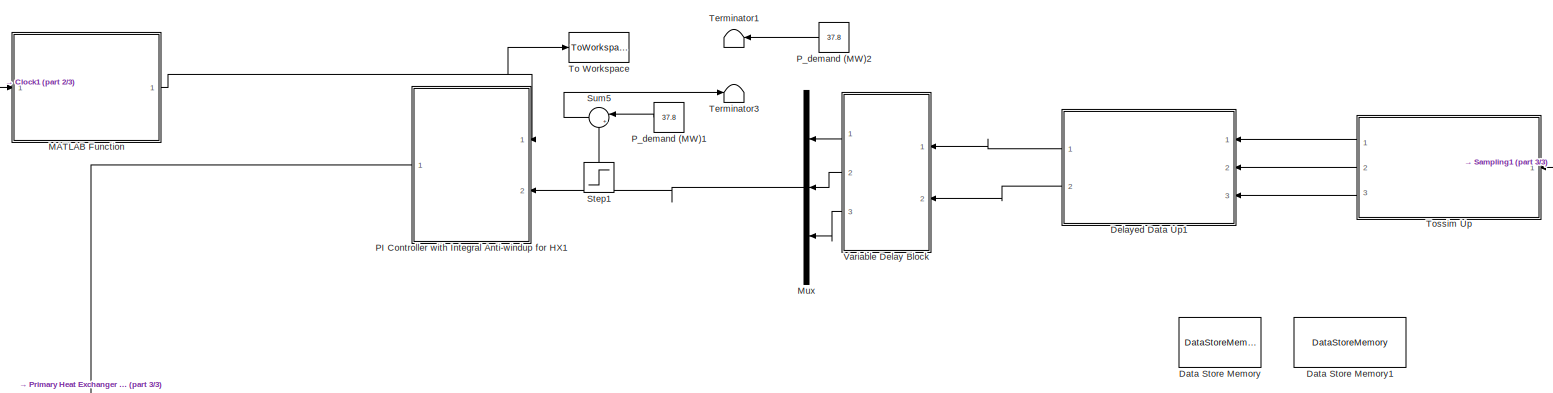
[diagram: root canvas - part 1/3, full width, top band]
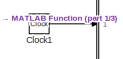
[diagram: root canvas - part 2/3, top left region]
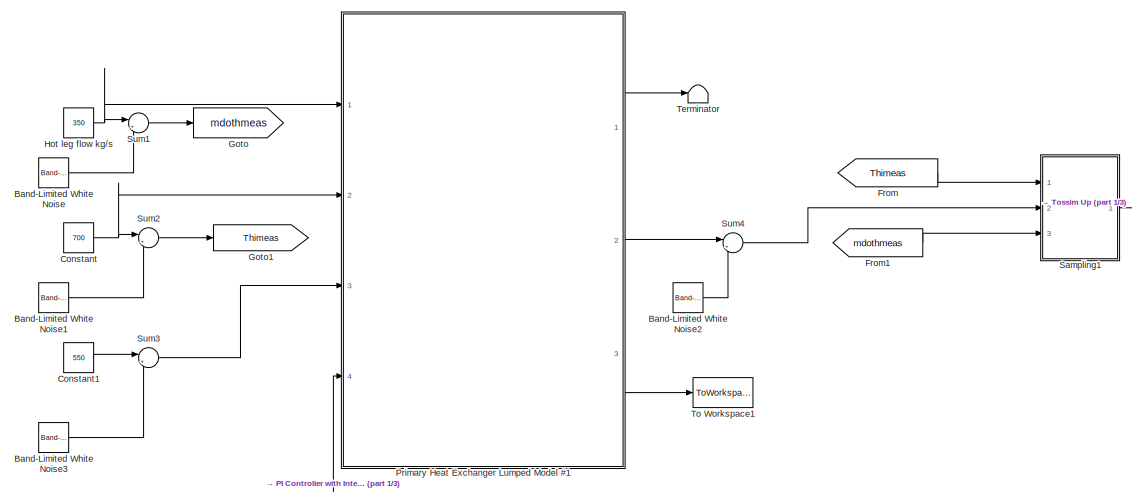
[diagram: root canvas - part 3/3, bottom center region]
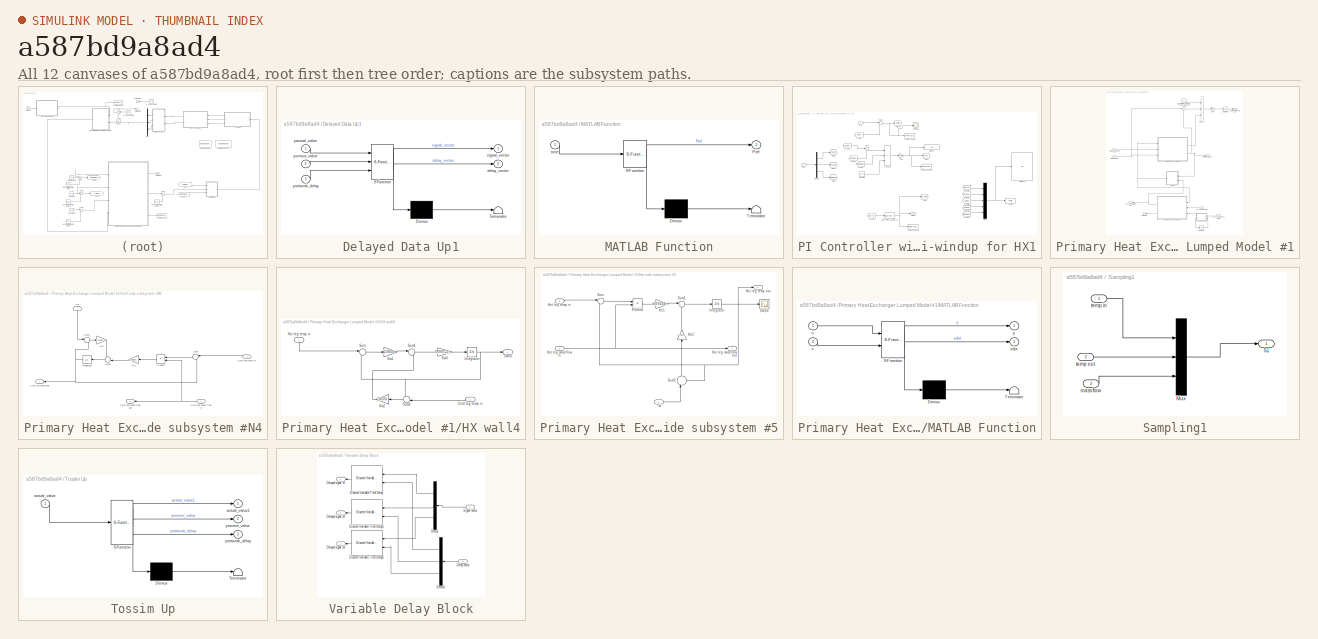
[diagram: thumbnail index - all 12 canvases of the model, root first then tree order]
MODEL slx_a587bd9a8ad4
KIND model
BLOCK [Reference] Band-Limited White Noise  REF=simulink/Sources/Band-Limited
White Noise
  Cov = Sv_mh*Ts
  Ports = [0, 1]
  SourceBlock = simulink/Sources/Band-Limited\nWhite Noise
  SourceType = Band-Limited White Noise.
  Ts = Ts
  VectorParams1D = on
  seed = [34567]
BLOCK [Reference] Band-Limited White Noise1  REF=simulink/Sources/Band-Limited
White Noise
  Cov = Sv_thi*Ts
  Ports = [0, 1]
  SourceBlock = simulink/Sources/Band-Limited\nWhite Noise
  SourceType = Band-Limited White Noise.
  Ts = Ts
  VectorParams1D = on
  seed = [11111]
BLOCK [Reference] Band-Limited White Noise2  REF=simulink/Sources/Band-Limited
White Noise
  Cov = Sv_tho*Ts
  Ports = [0, 1]
  SourceBlock = simulink/Sources/Band-Limited\nWhite Noise
  SourceType = Band-Limited White Noise.
  Ts = Ts
  VectorParams1D = on
  seed = [45678]
BLOCK [Reference] Band-Limited White Noise3  REF=simulink/Sources/Band-Limited
White Noise
  Cov = 0
  Ports = [0, 1]
  SourceBlock = simulink/Sources/Band-Limited\nWhite Noise
  SourceType = Band-Limited White Noise.
  Ts = Ts
  VectorParams1D = on
  seed = [23341]
BLOCK [Clock] Clock1
BLOCK [Constant] Constant
  Value = 700
BLOCK [Constant] Constant1
  Value = 550
BLOCK [DataStoreMemory] Data Store Memory
  DataStoreName = counter_global
  OutDataTypeStr = int32
  ReadBeforeWriteMsg = warning
  SignalType = real
  WriteAfterReadMsg = warning
  WriteAfterWriteMsg = warning
BLOCK [DataStoreMemory] Data Store Memory1
  DataStoreName = ydelay_global
  InitialValue = ones(10,1)
  OutDataTypeStr = int32
  ReadBeforeWriteMsg = warning
  SignalType = real
  WriteAfterReadMsg = warning
  WriteAfterWriteMsg = warning
BLOCK [SubSystem] Delayed Data Up1
  ErrorFcn = Stateflow.Translate.translate
  PermitHierarchicalResolution = ExplicitOnly
  Ports = [3, 2]
  RequestExecContextInheritance = off
  SFBlockType = MATLAB Function
  SystemSampleTime = 0.1
  TreatAsAtomicUnit = on
BLOCK [Demux] Delayed Data Up1/ Demux 
  Outputs = 1
  Ports = [1, 1]
BLOCK [S-Function] Delayed Data Up1/ SFunction 
  EnableBusSupport = on
  FunctionName = sf_sfun
  Parameters = structure
  PortCounts = [3 3]
  Ports = [3, 3]
  Tag = Stateflow S-Function HeatExchanger_whole_sanity 3
BLOCK [Terminator] Delayed Data Up1/ Terminator 
BLOCK [Outport] Delayed Data Up1/delay_vector
  IconDisplay = Port number
  Port = 2
BLOCK [Outport] Delayed Data Up1/signal_vector
  IconDisplay = Port number
BLOCK [Inport] Delayed Data Up1/yactual_value
  IconDisplay = Port number
BLOCK [Inport] Delayed Data Up1/ynetwork_delay
  IconDisplay = Port number
  Port = 3
BLOCK [Inport] Delayed Data Up1/ysensor_value
  IconDisplay = Port number
  Port = 2
BLOCK [From] From
  GotoTag = Thimeas
  TagVisibility = global
BLOCK [From] From1
  GotoTag = mdothmeas
  TagVisibility = global
BLOCK [Goto] Goto
  GotoTag = mdothmeas
  TagVisibility = global
BLOCK [Goto] Goto1
  GotoTag = Thimeas
  TagVisibility = global
BLOCK [Constant] Hot leg flow kg//s
  Value = 350
BLOCK [SubSystem] MATLAB Function
  ErrorFcn = Stateflow.Translate.translate
  PermitHierarchicalResolution = ExplicitOnly
  Ports = [1, 1]
  RequestExecContextInheritance = off
  SFBlockType = MATLAB Function
  TreatAsAtomicUnit = on
BLOCK [Demux] MATLAB Function/ Demux 
  Outputs = 1
  Ports = [1, 1]
BLOCK [S-Function] MATLAB Function/ SFunction 
  EnableBusSupport = on
  FunctionName = sf_sfun
  PortCounts = [1 2]
  Ports = [1, 2]
  Tag = Stateflow S-Function HeatExchanger_whole_sanity 4
BLOCK [Terminator] MATLAB Function/ Terminator 
BLOCK [Outport] MATLAB Function/Pref
  IconDisplay = Port number
BLOCK [Inport] MATLAB Function/time
  IconDisplay = Port number
BLOCK [Mux] Mux
  DisplayOption = bar
  Inputs = 3
  Ports = [3, 1]
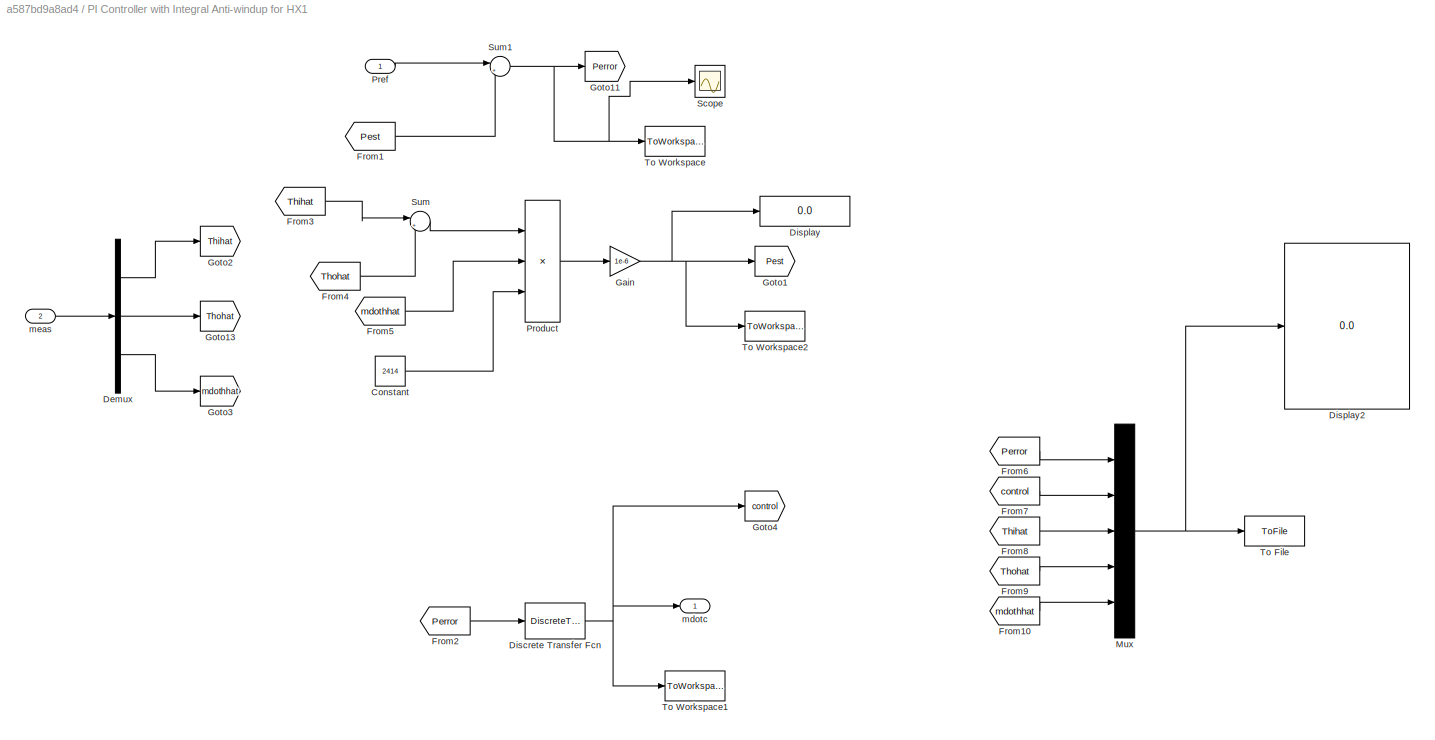
BLOCK [SubSystem] PI Controller with Integral Anti-windup for HX1
  Ports = [2, 1]
  RequestExecContextInheritance = off
BLOCK [Constant] PI Controller with Integral Anti-windup for HX1/Constant
  SampleTime = Ts
  Value = 2414
BLOCK [Demux] PI Controller with Integral Anti-windup for HX1/Demux
  DisplayOption = bar
  Outputs = 3
  Ports = [1, 3]
BLOCK [DiscreteTransferFcn] PI Controller with Integral Anti-windup for HX1/Discrete Transfer Fcn
  Denominator = [1 -1]
  InitialStates = 20
  InputPortMap = u0
  Numerator = [kp -(kp-ki*Ts)]
  Ports = [1, 1]
  SampleTime = Ts
BLOCK [Display] PI Controller with Integral Anti-windup for HX1/Display
  Decimation = 1
  Ports = [1]
BLOCK [Display] PI Controller with Integral Anti-windup for HX1/Display2
  Decimation = 1
  Ports = [1]
BLOCK [From] PI Controller with Integral Anti-windup for HX1/From1
  GotoTag = Pest
  TagVisibility = global
BLOCK [From] PI Controller with Integral Anti-windup for HX1/From10
  GotoTag = mdothhat
  TagVisibility = global
BLOCK [From] PI Controller with Integral Anti-windup for HX1/From2
  GotoTag = Perror
  TagVisibility = global
BLOCK [From] PI Controller with Integral Anti-windup for HX1/From3
  GotoTag = Thihat
  TagVisibility = global
BLOCK [From] PI Controller with Integral Anti-windup for HX1/From4
  GotoTag = Thohat
  TagVisibility = global
BLOCK [From] PI Controller with Integral Anti-windup for HX1/From5
  GotoTag = mdothhat
  TagVisibility = global
BLOCK [From] PI Controller with Integral Anti-windup for HX1/From6
  GotoTag = Perror
  TagVisibility = global
BLOCK [From] PI Controller with Integral Anti-windup for HX1/From7
  GotoTag = control
  TagVisibility = global
BLOCK [From] PI Controller with Integral Anti-windup for HX1/From8
  GotoTag = Thihat
  TagVisibility = global
BLOCK [From] PI Controller with Integral Anti-windup for HX1/From9
  GotoTag = Thohat
  TagVisibility = global
BLOCK [Gain] PI Controller with Integral Anti-windup for HX1/Gain
  Gain = 1e-6
  OutDataTypeStr = Inherit: Inherit via internal rule
  ParamDataTypeStr = Inherit: Inherit via internal rule
  SaturateOnIntegerOverflow = off
BLOCK [Goto] PI Controller with Integral Anti-windup for HX1/Goto1
  GotoTag = Pest
  TagVisibility = global
BLOCK [Goto] PI Controller with Integral Anti-windup for HX1/Goto11
  GotoTag = Perror
  TagVisibility = global
BLOCK [Goto] PI Controller with Integral Anti-windup for HX1/Goto13
  GotoTag = Thohat
  TagVisibility = global
BLOCK [Goto] PI Controller with Integral Anti-windup for HX1/Goto2
  GotoTag = Thihat
  TagVisibility = global
BLOCK [Goto] PI Controller with Integral Anti-windup for HX1/Goto3
  GotoTag = mdothhat
  TagVisibility = global
BLOCK [Goto] PI Controller with Integral Anti-windup for HX1/Goto4
  GotoTag = control
  TagVisibility = global
BLOCK [Mux] PI Controller with Integral Anti-windup for HX1/Mux
  DisplayOption = bar
  Inputs = 5
  Ports = [5, 1]
BLOCK [Inport] PI Controller with Integral Anti-windup for HX1/Pref
  IconDisplay = Port number
BLOCK [Product] PI Controller with Integral Anti-windup for HX1/Product
  InputSameDT = off
  Inputs = 3
  OutDataTypeStr = Inherit: Inherit via internal rule
  Ports = [3, 1]
  RndMeth = Floor
  SaturateOnIntegerOverflow = off
BLOCK [Scope] PI Controller with Integral Anti-windup for HX1/Scope
  DataFormat = StructureWithTime
  Floating = off
  LimitDataPoints = off
  NumInputPorts = 1
  Ports = [1]
  SampleTime = 0
  SaveName = ScopeData1
  ShowLegends = off
BLOCK [Sum] PI Controller with Integral Anti-windup for HX1/Sum
  IconShape = round
  InputSameDT = off
  Inputs = |+-
  OutDataTypeStr = Inherit: Inherit via internal rule
  Ports = [2, 1]
  SaturateOnIntegerOverflow = off
BLOCK [Sum] PI Controller with Integral Anti-windup for HX1/Sum1
  IconShape = round
  InputSameDT = off
  Inputs = |+-
  OutDataTypeStr = Inherit: Inherit via internal rule
  Ports = [2, 1]
  SaturateOnIntegerOverflow = off
BLOCK [ToFile] PI Controller with Integral Anti-windup for HX1/To File
  Filename = xorigsanity.mat
  MatrixName = xorigsanity
  Ports = [1]
BLOCK [ToWorkspace] PI Controller with Integral Anti-windup for HX1/To Workspace
  MaxDataPoints = inf
  Ports = [1]
  SampleTime = -1
  VariableName = Perror
BLOCK [ToWorkspace] PI Controller with Integral Anti-windup for HX1/To Workspace1
  MaxDataPoints = inf
  Ports = [1]
  SampleTime = -1
  VariableName = control
BLOCK [ToWorkspace] PI Controller with Integral Anti-windup for HX1/To Workspace2
  MaxDataPoints = inf
  Ports = [1]
  SampleTime = -1
  VariableName = Pest
BLOCK [Outport] PI Controller with Integral Anti-windup for HX1/mdotc
  IconDisplay = Port number
BLOCK [Inport] PI Controller with Integral Anti-windup for HX1/meas
  IconDisplay = Port number
  Port = 2
BLOCK [Constant] P_demand (MW)1
  Value = 37.8
BLOCK [Constant] P_demand (MW)2
  Value = 37.8
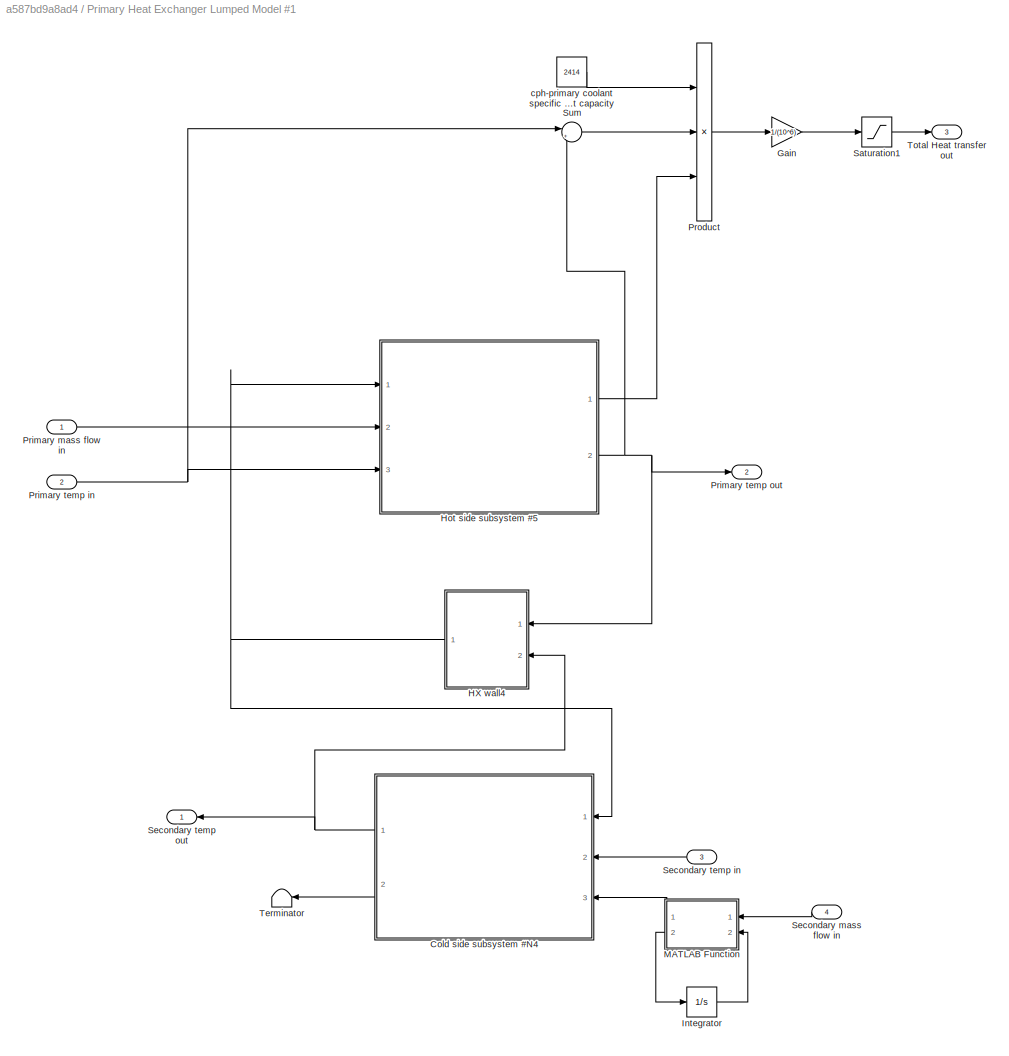
BLOCK [SubSystem] Primary Heat Exchanger Lumped Model #1
  Ports = [4, 3]
  RequestExecContextInheritance = off
BLOCK [SubSystem] Primary Heat Exchanger Lumped Model #1/Cold side subsystem #N4
  Ports = [3, 2]
  RequestExecContextInheritance = off
BLOCK [Inport] Primary Heat Exchanger Lumped Model #1/Cold side subsystem #N4/Cold leg mass flow in
  IconDisplay = Port number
  Port = 3
BLOCK [Outport] Primary Heat Exchanger Lumped Model #1/Cold side subsystem #N4/Cold leg mass flow out
  IconDisplay = Port number
  Port = 2
BLOCK [Inport] Primary Heat Exchanger Lumped Model #1/Cold side subsystem #N4/Cold leg temp in
  IconDisplay = Port number
  Port = 2
BLOCK [Outport] Primary Heat Exchanger Lumped Model #1/Cold side subsystem #N4/Cold leg temp out
  IconDisplay = Port number
BLOCK [Integrator] Primary Heat Exchanger Lumped Model #1/Cold side subsystem #N4/Integrator
  InitialCondition = 638.4
  Ports = [1, 1]
BLOCK [Gain] Primary Heat Exchanger Lumped Model #1/Cold side subsystem #N4/Kc1
  Gain = 0.000327262183480198
  OutDataTypeStr = Inherit: Inherit via internal rule
  ParamDataTypeStr = Inherit: Inherit via internal rule
  SaturateOnIntegerOverflow = off
BLOCK [Gain] Primary Heat Exchanger Lumped Model #1/Cold side subsystem #N4/Kc2
  Gain = 1.23242359038211
  OutDataTypeStr = Inherit: Inherit via internal rule
  ParamDataTypeStr = Inherit: Inherit via internal rule
  SaturateOnIntegerOverflow = off
BLOCK [Product] Primary Heat Exchanger Lumped Model #1/Cold side subsystem #N4/Product
  InputSameDT = off
  OutDataTypeStr = Inherit: Inherit via internal rule
  Ports = [2, 1]
  RndMeth = Floor
  SaturateOnIntegerOverflow = off
BLOCK [Sum] Primary Heat Exchanger Lumped Model #1/Cold side subsystem #N4/Sum
  IconShape = round
  InputSameDT = off
  Inputs = |+-
  OutDataTypeStr = Inherit: Inherit via internal rule
  Ports = [2, 1]
  SaturateOnIntegerOverflow = off
BLOCK [Sum] Primary Heat Exchanger Lumped Model #1/Cold side subsystem #N4/Sum1
  IconShape = round
  InputSameDT = off
  Inputs = ++|
  OutDataTypeStr = Inherit: Inherit via internal rule
  Ports = [2, 1]
  SaturateOnIntegerOverflow = off
BLOCK [Sum] Primary Heat Exchanger Lumped Model #1/Cold side subsystem #N4/Sum2
  IconShape = round
  InputSameDT = off
  Inputs = |+-
  OutDataTypeStr = Inherit: Inherit via internal rule
  Ports = [2, 1]
  SaturateOnIntegerOverflow = off
BLOCK [Inport] Primary Heat Exchanger Lumped Model #1/Cold side subsystem #N4/Tw
  IconDisplay = Port number
BLOCK [Gain] Primary Heat Exchanger Lumped Model #1/Gain
  Gain = 1/(10^6)
  OutDataTypeStr = Inherit: Inherit via internal rule
  ParamDataTypeStr = Inherit: Inherit via internal rule
  SaturateOnIntegerOverflow = off
BLOCK [SubSystem] Primary Heat Exchanger Lumped Model #1/HX wall4
  Ports = [2, 1]
  RequestExecContextInheritance = off
BLOCK [Inport] Primary Heat Exchanger Lumped Model #1/HX wall4/Cold leg temp in
  IconDisplay = Port number
  Port = 2
BLOCK [Inport] Primary Heat Exchanger Lumped Model #1/HX wall4/Hot leg temp in
  IconDisplay = Port number
BLOCK [Integrator] Primary Heat Exchanger Lumped Model #1/HX wall4/Integrator
  InitialCondition = 644.3
  Ports = [1, 1]
BLOCK [Gain] Primary Heat Exchanger Lumped Model #1/HX wall4/Kw1
  Gain = 23800
  OutDataTypeStr = Inherit: Inherit via internal rule
  ParamDataTypeStr = Inherit: Inherit via internal rule
  SaturateOnIntegerOverflow = off
BLOCK [Gain] Primary Heat Exchanger Lumped Model #1/HX wall4/Kw2
  Gain = 24500
  OutDataTypeStr = Inherit: Inherit via internal rule
  ParamDataTypeStr = Inherit: Inherit via internal rule
  SaturateOnIntegerOverflow = off
BLOCK [Gain] Primary Heat Exchanger Lumped Model #1/HX wall4/Kw3
  Gain = 0.000122049789881805
  OutDataTypeStr = Inherit: Inherit via internal rule
  ParamDataTypeStr = Inherit: Inherit via internal rule
  SaturateOnIntegerOverflow = off
BLOCK [Sum] Primary Heat Exchanger Lumped Model #1/HX wall4/Sum
  IconShape = round
  InputSameDT = off
  Inputs = |+-
  OutDataTypeStr = Inherit: Inherit via internal rule
  Ports = [2, 1]
  SaturateOnIntegerOverflow = off
BLOCK [Sum] Primary Heat Exchanger Lumped Model #1/HX wall4/Sum1
  IconShape = round
  InputSameDT = off
  Inputs = |+-
  OutDataTypeStr = Inherit: Inherit via internal rule
  Ports = [2, 1]
  SaturateOnIntegerOverflow = off
BLOCK [Sum] Primary Heat Exchanger Lumped Model #1/HX wall4/Sum2
  IconShape = round
  InputSameDT = off
  Inputs = +-|
  OutDataTypeStr = Inherit: Inherit via internal rule
  Ports = [2, 1]
  SaturateOnIntegerOverflow = off
BLOCK [Outport] Primary Heat Exchanger Lumped Model #1/HX wall4/Twout
  IconDisplay = Port number
BLOCK [SubSystem] Primary Heat Exchanger Lumped Model #1/Hot side subsystem #5
  Ports = [3, 2]
  RequestExecContextInheritance = off
BLOCK [Inport] Primary Heat Exchanger Lumped Model #1/Hot side subsystem #5/Hot leg mass flow in
  IconDisplay = Port number
  Port = 2
BLOCK [Outport] Primary Heat Exchanger Lumped Model #1/Hot side subsystem #5/Hot leg mass flow out
  IconDisplay = Port number
BLOCK [Inport] Primary Heat Exchanger Lumped Model #1/Hot side subsystem #5/Hot leg temp in
  IconDisplay = Port number
  Port = 3
BLOCK [Outport] Primary Heat Exchanger Lumped Model #1/Hot side subsystem #5/Hot leg temp out
  IconDisplay = Port number
  Port = 2
BLOCK [Integrator] Primary Heat Exchanger Lumped Model #1/Hot side subsystem #5/Integrator
  InitialCondition = 650.29
  Ports = [1, 1]
BLOCK [Gain] Primary Heat Exchanger Lumped Model #1/Hot side subsystem #5/Kh1
  Gain = 0.000447917898440887
  OutDataTypeStr = Inherit: Inherit via internal rule
  ParamDataTypeStr = Inherit: Inherit via internal rule
  SaturateOnIntegerOverflow = off
BLOCK [Gain] Primary Heat Exchanger Lumped Model #1/Hot side subsystem #5/Kh2
  Gain = 1.29038206967745
  OutDataTypeStr = Inherit: Inherit via internal rule
  ParamDataTypeStr = Inherit: Inherit via internal rule
  SaturateOnIntegerOverflow = off
BLOCK [Product] Primary Heat Exchanger Lumped Model #1/Hot side subsystem #5/Product
  InputSameDT = off
  OutDataTypeStr = Inherit: Inherit via internal rule
  Ports = [2, 1]
  RndMeth = Floor
  SaturateOnIntegerOverflow = off
BLOCK [Scope] Primary Heat Exchanger Lumped Model #1/Hot side subsystem #5/Scope
  DataFormat = StructureWithTime
  Floating = off
  NumInputPorts = 1
  Ports = [1]
  SampleTime = 0
  ShowLegends = off
BLOCK [Sum] Primary Heat Exchanger Lumped Model #1/Hot side subsystem #5/Sum
  IconShape = round
  InputSameDT = off
  Inputs = |+-
  OutDataTypeStr = Inherit: Inherit via internal rule
  Ports = [2, 1]
  SaturateOnIntegerOverflow = off
BLOCK [Sum] Primary Heat Exchanger Lumped Model #1/Hot side subsystem #5/Sum1
  IconShape = round
  InputSameDT = off
  Inputs = |+-
  OutDataTypeStr = Inherit: Inherit via internal rule
  Ports = [2, 1]
  SaturateOnIntegerOverflow = off
BLOCK [Sum] Primary Heat Exchanger Lumped Model #1/Hot side subsystem #5/Sum2
  IconShape = round
  InputSameDT = off
  Inputs = |-+
  OutDataTypeStr = Inherit: Inherit via internal rule
  Ports = [2, 1]
  SaturateOnIntegerOverflow = off
BLOCK [Inport] Primary Heat Exchanger Lumped Model #1/Hot side subsystem #5/Tw
  IconDisplay = Port number
BLOCK [Integrator] Primary Heat Exchanger Lumped Model #1/Integrator
  InitialCondition = 250
  Ports = [1, 1]
BLOCK [SubSystem] Primary Heat Exchanger Lumped Model #1/MATLAB Function
  ErrorFcn = Stateflow.Translate.translate
  PermitHierarchicalResolution = ExplicitOnly
  Ports = [2, 2]
  RequestExecContextInheritance = off
  SFBlockType = MATLAB Function
  TreatAsAtomicUnit = on
BLOCK [Demux] Primary Heat Exchanger Lumped Model #1/MATLAB Function/ Demux 
  Outputs = 1
  Ports = [1, 1]
BLOCK [S-Function] Primary Heat Exchanger Lumped Model #1/MATLAB Function/ SFunction 
  EnableBusSupport = on
  FunctionName = sf_sfun
  PortCounts = [2 3]
  Ports = [2, 3]
  Tag = Stateflow S-Function HeatExchanger_whole_sanity 2
BLOCK [Terminator] Primary Heat Exchanger Lumped Model #1/MATLAB Function/ Terminator 
BLOCK [Inport] Primary Heat Exchanger Lumped Model #1/MATLAB Function/u
  IconDisplay = Port number
BLOCK [Inport] Primary Heat Exchanger Lumped Model #1/MATLAB Function/x
  IconDisplay = Port number
  Port = 2
BLOCK [Outport] Primary Heat Exchanger Lumped Model #1/MATLAB Function/xdot
  IconDisplay = Port number
  Port = 2
BLOCK [Outport] Primary Heat Exchanger Lumped Model #1/MATLAB Function/y
  IconDisplay = Port number
BLOCK [Inport] Primary Heat Exchanger Lumped Model #1/Primary mass flow in
  IconDisplay = Port number
BLOCK [Inport] Primary Heat Exchanger Lumped Model #1/Primary temp in
  IconDisplay = Port number
  Port = 2
BLOCK [Outport] Primary Heat Exchanger Lumped Model #1/Primary temp out
  IconDisplay = Port number
  Port = 2
BLOCK [Product] Primary Heat Exchanger Lumped Model #1/Product
  InputSameDT = off
  Inputs = 3
  OutDataTypeStr = Inherit: Inherit via internal rule
  Ports = [3, 1]
  RndMeth = Floor
  SaturateOnIntegerOverflow = off
BLOCK [Saturate] Primary Heat Exchanger Lumped Model #1/Saturation1
  InputPortMap = u0
  LowerLimit = 0
  Ports = [1, 1]
  UpperLimit = inf
BLOCK [Inport] Primary Heat Exchanger Lumped Model #1/Secondary mass flow in
  IconDisplay = Port number
  Port = 4
BLOCK [Inport] Primary Heat Exchanger Lumped Model #1/Secondary temp in
  IconDisplay = Port number
  Port = 3
BLOCK [Outport] Primary Heat Exchanger Lumped Model #1/Secondary temp out
  IconDisplay = Port number
BLOCK [Sum] Primary Heat Exchanger Lumped Model #1/Sum
  IconShape = round
  InputSameDT = off
  Inputs = |+-
  OutDataTypeStr = Inherit: Inherit via internal rule
  Ports = [2, 1]
  SaturateOnIntegerOverflow = off
BLOCK [Terminator] Primary Heat Exchanger Lumped Model #1/Terminator
BLOCK [Outport] Primary Heat Exchanger Lumped Model #1/Total Heat transfer out 
  IconDisplay = Port number
  Port = 3
BLOCK [Constant] Primary Heat Exchanger Lumped Model #1/cph-primary coolant specific heat capacity
  Value = 2414
BLOCK [SubSystem] Sampling1
  Ports = [3, 1]
  RequestExecContextInheritance = off
BLOCK [Mux] Sampling1/Mux
  DisplayOption = bar
  Inputs = 3
  Ports = [3, 1]
BLOCK [Outport] Sampling1/S1
  IconDisplay = Port number
BLOCK [Inport] Sampling1/mass flow
  IconDisplay = Port number
  Port = 3
BLOCK [Inport] Sampling1/temp in
  IconDisplay = Port number
BLOCK [Inport] Sampling1/temp out
  IconDisplay = Port number
  Port = 2
BLOCK [Step] Step1
  After = +4.2
  SampleTime = 0
  Time = 0
BLOCK [Sum] Sum1
  IconShape = round
  InputSameDT = off
  Inputs = |++
  OutDataTypeStr = Inherit: Inherit via internal rule
  Ports = [2, 1]
  SaturateOnIntegerOverflow = off
BLOCK [Sum] Sum2
  IconShape = round
  InputSameDT = off
  Inputs = |++
  OutDataTypeStr = Inherit: Inherit via internal rule
  Ports = [2, 1]
  SaturateOnIntegerOverflow = off
BLOCK [Sum] Sum3
  IconShape = round
  InputSameDT = off
  Inputs = |++
  OutDataTypeStr = Inherit: Inherit via internal rule
  Ports = [2, 1]
  SaturateOnIntegerOverflow = off
BLOCK [Sum] Sum4
  IconShape = round
  InputSameDT = off
  Inputs = |++
  OutDataTypeStr = Inherit: Inherit via internal rule
  Ports = [2, 1]
  SaturateOnIntegerOverflow = off
BLOCK [Sum] Sum5
  IconShape = round
  InputSameDT = off
  Inputs = |++
  OutDataTypeStr = Inherit: Inherit via internal rule
  Ports = [2, 1]
  SaturateOnIntegerOverflow = off
BLOCK [Terminator] Terminator
BLOCK [Terminator] Terminator1
BLOCK [Terminator] Terminator3
BLOCK [ToWorkspace] To Workspace
  FixptAsFi = on
  MaxDataPoints = inf
  Ports = [1]
  SampleTime = -1
  Save2DSignal = 3-D array (concatenate along third dimension)
  SaveFormat = Timeseries
  VariableName = refinput
BLOCK [ToWorkspace] To Workspace1
  FixptAsFi = on
  MaxDataPoints = inf
  Ports = [1]
  SampleTime = -1
  Save2DSignal = 3-D array (concatenate along third dimension)
  SaveFormat = Timeseries
  VariableName = HeatTransferOut
BLOCK [SubSystem] Tossim Up
  ErrorFcn = Stateflow.Translate.translate
  PermitHierarchicalResolution = ExplicitOnly
  Ports = [1, 3]
  RequestExecContextInheritance = off
  SFBlockType = MATLAB Function
  SystemSampleTime = 0.1
  TreatAsAtomicUnit = on
BLOCK [Demux] Tossim Up/ Demux 
  Outputs = 1
  Ports = [1, 1]
BLOCK [S-Function] Tossim Up/ SFunction 
  EnableBusSupport = on
  FunctionName = sf_sfun
  PortCounts = [1 4]
  Ports = [1, 4]
  Tag = Stateflow S-Function HeatExchanger_whole_sanity 1
BLOCK [Terminator] Tossim Up/ Terminator 
BLOCK [Inport] Tossim Up/actual_value
  IconDisplay = Port number
BLOCK [Outport] Tossim Up/actual_value1
  IconDisplay = Port number
BLOCK [Outport] Tossim Up/ynetwork_delay
  IconDisplay = Port number
  Port = 3
BLOCK [Outport] Tossim Up/ysensor_value
  IconDisplay = Port number
  Port = 2
BLOCK [SubSystem] Variable Delay Block
  Ports = [2, 3]
  RequestExecContextInheritance = off
BLOCK [Inport] Variable Delay Block/Delay vector
  IconDisplay = Port number
  Port = 2
BLOCK [Outport] Variable Delay Block/Delayed signal #1
  IconDisplay = Port number
BLOCK [Outport] Variable Delay Block/Delayed signal #2
  IconDisplay = Port number
  Port = 2
BLOCK [Outport] Variable Delay Block/Delayed signal #3
  IconDisplay = Port number
  Port = 3
BLOCK [Demux] Variable Delay Block/Demux
  DisplayOption = bar
  Outputs = 3
  Ports = [1, 3]
BLOCK [Demux] Variable Delay Block/Demux1
  DisplayOption = bar
  Outputs = 3
  Ports = [1, 3]
BLOCK [Reference] Variable Delay Block/Discrete Variable Time Delay  REF=powerlib_meascontrol/Additional Components/Discrete Variable
Time Delay
  DFT = on
  InitialValue = 700
  MaxDelay = 2
  Ports = [2, 1]
  SourceBlock = powerlib_meascontrol/Additional Components/Discrete Variable\nTime Delay
  SourceType = Discrete Variable Time Delay
  Ts = delta_t
BLOCK [Reference] Variable Delay Block/Discrete Variable Time Delay1  REF=powerlib_meascontrol/Additional Components/Discrete Variable
Time Delay
  DFT = on
  InitialValue = 650.29
  MaxDelay = 2
  Ports = [2, 1]
  SourceBlock = powerlib_meascontrol/Additional Components/Discrete Variable\nTime Delay
  SourceType = Discrete Variable Time Delay
  Ts = delta_t
BLOCK [Reference] Variable Delay Block/Discrete Variable Time Delay2  REF=powerlib_meascontrol/Additional Components/Discrete Variable
Time Delay
  DFT = on
  InitialValue = 350
  MaxDelay = 2
  Ports = [2, 1]
  SourceBlock = powerlib_meascontrol/Additional Components/Discrete Variable\nTime Delay
  SourceType = Discrete Variable Time Delay
  Ts = delta_t
BLOCK [Inport] Variable Delay Block/Signal vector
  IconDisplay = Port number
LINE Band-Limited White Noise1:1 -> Sum2:2
LINE Band-Limited White Noise2:1 -> Sum4:2
LINE Band-Limited White Noise3:1 -> Sum3:2
LINE Band-Limited White Noise:1 -> Sum1:2
LINE Clock1:1 -> MATLAB Function:1
LINE Constant1:1 -> Sum3:1
NET Constant:1 -> Primary Heat Exchanger Lumped Model #1:2, Sum2:1
LINE Delayed Data Up1:1 -> Variable Delay Block:1
LINE Delayed Data Up1:2 -> Variable Delay Block:2
LINE From1:1 -> Sampling1:3
LINE From:1 -> Sampling1:1
NET Hot leg flow kg//s:1 -> Primary Heat Exchanger Lumped Model #1:1, Sum1:1
NET MATLAB Function:1 -> PI Controller with Integral Anti-windup for HX1:1, To Workspace:1
LINE Mux:1 -> PI Controller with Integral Anti-windup for HX1:2
LINE PI Controller with Integral Anti-windup for HX1/Constant:1 -> PI Controller with Integral Anti-windup for HX1/Product:3
LINE PI Controller with Integral Anti-windup for HX1/Demux:1 -> PI Controller with Integral Anti-windup for HX1/Goto2:1
LINE PI Controller with Integral Anti-windup for HX1/Demux:2 -> PI Controller with Integral Anti-windup for HX1/Goto13:1
LINE PI Controller with Integral Anti-windup for HX1/Demux:3 -> PI Controller with Integral Anti-windup for HX1/Goto3:1
NET PI Controller with Integral Anti-windup for HX1/Discrete Transfer Fcn:1 -> PI Controller with Integral Anti-windup for HX1/Goto4:1, PI Controller with Integral Anti-windup for HX1/To Workspace1:1, PI Controller with Integral Anti-windup for HX1/mdotc:1
LINE PI Controller with Integral Anti-windup for HX1/From10:1 -> PI Controller with Integral Anti-windup for HX1/Mux:5
LINE PI Controller with Integral Anti-windup for HX1/From1:1 -> PI Controller with Integral Anti-windup for HX1/Sum1:2
LINE PI Controller with Integral Anti-windup for HX1/From2:1 -> PI Controller with Integral Anti-windup for HX1/Discrete Transfer Fcn:1
LINE PI Controller with Integral Anti-windup for HX1/From3:1 -> PI Controller with Integral Anti-windup for HX1/Sum:1
LINE PI Controller with Integral Anti-windup for HX1/From4:1 -> PI Controller with Integral Anti-windup for HX1/Sum:2
LINE PI Controller with Integral Anti-windup for HX1/From5:1 -> PI Controller with Integral Anti-windup for HX1/Product:2
LINE PI Controller with Integral Anti-windup for HX1/From6:1 -> PI Controller with Integral Anti-windup for HX1/Mux:1
LINE PI Controller with Integral Anti-windup for HX1/From7:1 -> PI Controller with Integral Anti-windup for HX1/Mux:2
LINE PI Controller with Integral Anti-windup for HX1/From8:1 -> PI Controller with Integral Anti-windup for HX1/Mux:3
LINE PI Controller with Integral Anti-windup for HX1/From9:1 -> PI Controller with Integral Anti-windup for HX1/Mux:4
NET PI Controller with Integral Anti-windup for HX1/Gain:1 -> PI Controller with Integral Anti-windup for HX1/Display:1, PI Controller with Integral Anti-windup for HX1/Goto1:1, PI Controller with Integral Anti-windup for HX1/To Workspace2:1
NET PI Controller with Integral Anti-windup for HX1/Mux:1 -> PI Controller with Integral Anti-windup for HX1/Display2:1, PI Controller with Integral Anti-windup for HX1/To File:1
LINE PI Controller with Integral Anti-windup for HX1/Pref:1 -> PI Controller with Integral Anti-windup for HX1/Sum1:1
LINE PI Controller with Integral Anti-windup for HX1/Product:1 -> PI Controller with Integral Anti-windup for HX1/Gain:1
NET PI Controller with Integral Anti-windup for HX1/Sum1:1 -> PI Controller with Integral Anti-windup for HX1/Goto11:1, PI Controller with Integral Anti-windup for HX1/Scope:1, PI Controller with Integral Anti-windup for HX1/To Workspace:1
LINE PI Controller with Integral Anti-windup for HX1/Sum:1 -> PI Controller with Integral Anti-windup for HX1/Product:1
LINE PI Controller with Integral Anti-windup for HX1/meas:1 -> PI Controller with Integral Anti-windup for HX1/Demux:1
LINE PI Controller with Integral Anti-windup for HX1:1 -> Primary Heat Exchanger Lumped Model #1:4
LINE P_demand (MW)1:1 -> Sum5:1
LINE P_demand (MW)2:1 -> Terminator1:1
NET Primary Heat Exchanger Lumped Model #1/Cold side subsystem #N4/Cold leg mass flow in:1 -> Primary Heat Exchanger Lumped Model #1/Cold side subsystem #N4/Cold leg mass flow out:1, Primary Heat Exchanger Lumped Model #1/Cold side subsystem #N4/Product:2
LINE Primary Heat Exchanger Lumped Model #1/Cold side subsystem #N4/Cold leg temp in:1 -> Primary Heat Exchanger Lumped Model #1/Cold side subsystem #N4/Sum:1
NET Primary Heat Exchanger Lumped Model #1/Cold side subsystem #N4/Integrator:1 -> Primary Heat Exchanger Lumped Model #1/Cold side subsystem #N4/Cold leg temp out:1, Primary Heat Exchanger Lumped Model #1/Cold side subsystem #N4/Sum2:2, Primary Heat Exchanger Lumped Model #1/Cold side subsystem #N4/Sum:2
LINE Primary Heat Exchanger Lumped Model #1/Cold side subsystem #N4/Kc1:1 -> Primary Heat Exchanger Lumped Model #1/Cold side subsystem #N4/Sum1:2
LINE Primary Heat Exchanger Lumped Model #1/Cold side subsystem #N4/Kc2:1 -> Primary Heat Exchanger Lumped Model #1/Cold side subsystem #N4/Sum1:1
LINE Primary Heat Exchanger Lumped Model #1/Cold side subsystem #N4/Product:1 -> Primary Heat Exchanger Lumped Model #1/Cold side subsystem #N4/Kc1:1
LINE Primary Heat Exchanger Lumped Model #1/Cold side subsystem #N4/Sum1:1 -> Primary Heat Exchanger Lumped Model #1/Cold side subsystem #N4/Integrator:1
LINE Primary Heat Exchanger Lumped Model #1/Cold side subsystem #N4/Sum2:1 -> Primary Heat Exchanger Lumped Model #1/Cold side subsystem #N4/Kc2:1
LINE Primary Heat Exchanger Lumped Model #1/Cold side subsystem #N4/Sum:1 -> Primary Heat Exchanger Lumped Model #1/Cold side subsystem #N4/Product:1
LINE Primary Heat Exchanger Lumped Model #1/Cold side subsystem #N4/Tw:1 -> Primary Heat Exchanger Lumped Model #1/Cold side subsystem #N4/Sum2:1
NET Primary Heat Exchanger Lumped Model #1/Cold side subsystem #N4:1 -> Primary Heat Exchanger Lumped Model #1/HX wall4:2, Primary Heat Exchanger Lumped Model #1/Secondary temp out:1
LINE Primary Heat Exchanger Lumped Model #1/Cold side subsystem #N4:2 -> Primary Heat Exchanger Lumped Model #1/Terminator:1
LINE Primary Heat Exchanger Lumped Model #1/Gain:1 -> Primary Heat Exchanger Lumped Model #1/Saturation1:1
LINE Primary Heat Exchanger Lumped Model #1/HX wall4/Cold leg temp in:1 -> Primary Heat Exchanger Lumped Model #1/HX wall4/Sum2:2
LINE Primary Heat Exchanger Lumped Model #1/HX wall4/Hot leg temp in:1 -> Primary Heat Exchanger Lumped Model #1/HX wall4/Sum:1
NET Primary Heat Exchanger Lumped Model #1/HX wall4/Integrator:1 -> Primary Heat Exchanger Lumped Model #1/HX wall4/Sum2:1, Primary Heat Exchanger Lumped Model #1/HX wall4/Sum:2, Primary Heat Exchanger Lumped Model #1/HX wall4/Twout:1
LINE Primary Heat Exchanger Lumped Model #1/HX wall4/Kw1:1 -> Primary Heat Exchanger Lumped Model #1/HX wall4/Sum1:1
LINE Primary Heat Exchanger Lumped Model #1/HX wall4/Kw2:1 -> Primary Heat Exchanger Lumped Model #1/HX wall4/Sum1:2
LINE Primary Heat Exchanger Lumped Model #1/HX wall4/Kw3:1 -> Primary Heat Exchanger Lumped Model #1/HX wall4/Integrator:1
LINE Primary Heat Exchanger Lumped Model #1/HX wall4/Sum1:1 -> Primary Heat Exchanger Lumped Model #1/HX wall4/Kw3:1
LINE Primary Heat Exchanger Lumped Model #1/HX wall4/Sum2:1 -> Primary Heat Exchanger Lumped Model #1/HX wall4/Kw2:1
LINE Primary Heat Exchanger Lumped Model #1/HX wall4/Sum:1 -> Primary Heat Exchanger Lumped Model #1/HX wall4/Kw1:1
NET Primary Heat Exchanger Lumped Model #1/HX wall4:1 -> Primary Heat Exchanger Lumped Model #1/Cold side subsystem #N4:1, Primary Heat Exchanger Lumped Model #1/Hot side subsystem #5:1
NET Primary Heat Exchanger Lumped Model #1/Hot side subsystem #5/Hot leg mass flow in:1 -> Primary Heat Exchanger Lumped Model #1/Hot side subsystem #5/Hot leg mass flow out:1, Primary Heat Exchanger Lumped Model #1/Hot side subsystem #5/Product:2
LINE Primary Heat Exchanger Lumped Model #1/Hot side subsystem #5/Hot leg temp in:1 -> Primary Heat Exchanger Lumped Model #1/Hot side subsystem #5/Sum:1
NET Primary Heat Exchanger Lumped Model #1/Hot side subsystem #5/Integrator:1 -> Primary Heat Exchanger Lumped Model #1/Hot side subsystem #5/Hot leg temp out:1, Primary Heat Exchanger Lumped Model #1/Hot side subsystem #5/Scope:1, Primary Heat Exchanger Lumped Model #1/Hot side subsystem #5/Sum2:2, Primary Heat Exchanger Lumped Model #1/Hot side subsystem #5/Sum:2
LINE Primary Heat Exchanger Lumped Model #1/Hot side subsystem #5/Kh1:1 -> Primary Heat Exchanger Lumped Model #1/Hot side subsystem #5/Sum1:1
LINE Primary Heat Exchanger Lumped Model #1/Hot side subsystem #5/Kh2:1 -> Primary Heat Exchanger Lumped Model #1/Hot side subsystem #5/Sum1:2
LINE Primary Heat Exchanger Lumped Model #1/Hot side subsystem #5/Product:1 -> Primary Heat Exchanger Lumped Model #1/Hot side subsystem #5/Kh1:1
LINE Primary Heat Exchanger Lumped Model #1/Hot side subsystem #5/Sum1:1 -> Primary Heat Exchanger Lumped Model #1/Hot side subsystem #5/Integrator:1
LINE Primary Heat Exchanger Lumped Model #1/Hot side subsystem #5/Sum2:1 -> Primary Heat Exchanger Lumped Model #1/Hot side subsystem #5/Kh2:1
LINE Primary Heat Exchanger Lumped Model #1/Hot side subsystem #5/Sum:1 -> Primary Heat Exchanger Lumped Model #1/Hot side subsystem #5/Product:1
LINE Primary Heat Exchanger Lumped Model #1/Hot side subsystem #5/Tw:1 -> Primary Heat Exchanger Lumped Model #1/Hot side subsystem #5/Sum2:1
LINE Primary Heat Exchanger Lumped Model #1/Hot side subsystem #5:1 -> Primary Heat Exchanger Lumped Model #1/Product:3
NET Primary Heat Exchanger Lumped Model #1/Hot side subsystem #5:2 -> Primary Heat Exchanger Lumped Model #1/HX wall4:1, Primary Heat Exchanger Lumped Model #1/Primary temp out:1, Primary Heat Exchanger Lumped Model #1/Sum:2
LINE Primary Heat Exchanger Lumped Model #1/Integrator:1 -> Primary Heat Exchanger Lumped Model #1/MATLAB Function:2
LINE Primary Heat Exchanger Lumped Model #1/MATLAB Function:1 -> Primary Heat Exchanger Lumped Model #1/Cold side subsystem #N4:3
LINE Primary Heat Exchanger Lumped Model #1/MATLAB Function:2 -> Primary Heat Exchanger Lumped Model #1/Integrator:1
LINE Primary Heat Exchanger Lumped Model #1/Primary mass flow in:1 -> Primary Heat Exchanger Lumped Model #1/Hot side subsystem #5:2
NET Primary Heat Exchanger Lumped Model #1/Primary temp in:1 -> Primary Heat Exchanger Lumped Model #1/Hot side subsystem #5:3, Primary Heat Exchanger Lumped Model #1/Sum:1
LINE Primary Heat Exchanger Lumped Model #1/Product:1 -> Primary Heat Exchanger Lumped Model #1/Gain:1
LINE Primary Heat Exchanger Lumped Model #1/Saturation1:1 -> Primary Heat Exchanger Lumped Model #1/Total Heat transfer out :1
LINE Primary Heat Exchanger Lumped Model #1/Secondary mass flow in:1 -> Primary Heat Exchanger Lumped Model #1/MATLAB Function:1
LINE Primary Heat Exchanger Lumped Model #1/Secondary temp in:1 -> Primary Heat Exchanger Lumped Model #1/Cold side subsystem #N4:2
LINE Primary Heat Exchanger Lumped Model #1/Sum:1 -> Primary Heat Exchanger Lumped Model #1/Product:2
LINE Primary Heat Exchanger Lumped Model #1/cph-primary coolant specific heat capacity:1 -> Primary Heat Exchanger Lumped Model #1/Product:1
LINE Primary Heat Exchanger Lumped Model #1:1 -> Terminator:1
LINE Primary Heat Exchanger Lumped Model #1:2 -> Sum4:1
LINE Primary Heat Exchanger Lumped Model #1:3 -> To Workspace1:1
LINE Sampling1/Mux:1 -> Sampling1/S1:1
LINE Sampling1/mass flow:1 -> Sampling1/Mux:3
LINE Sampling1/temp in:1 -> Sampling1/Mux:1
LINE Sampling1/temp out:1 -> Sampling1/Mux:2
LINE Sampling1:1 -> Tossim Up:1
LINE Step1:1 -> Sum5:2
LINE Sum1:1 -> Goto:1
LINE Sum2:1 -> Goto1:1
LINE Sum3:1 -> Primary Heat Exchanger Lumped Model #1:3
LINE Sum4:1 -> Sampling1:2
LINE Sum5:1 -> Terminator3:1
LINE Tossim Up:1 -> Delayed Data Up1:1
LINE Tossim Up:2 -> Delayed Data Up1:2
LINE Tossim Up:3 -> Delayed Data Up1:3
LINE Variable Delay Block/Delay vector:1 -> Variable Delay Block/Demux1:1
LINE Variable Delay Block/Demux1:1 -> Variable Delay Block/Discrete Variable Time Delay:2
LINE Variable Delay Block/Demux1:2 -> Variable Delay Block/Discrete Variable Time Delay1:2
LINE Variable Delay Block/Demux1:3 -> Variable Delay Block/Discrete Variable Time Delay2:2
LINE Variable Delay Block/Demux:1 -> Variable Delay Block/Discrete Variable Time Delay:1
LINE Variable Delay Block/Demux:2 -> Variable Delay Block/Discrete Variable Time Delay1:1
LINE Variable Delay Block/Demux:3 -> Variable Delay Block/Discrete Variable Time Delay2:1
LINE Variable Delay Block/Discrete Variable Time Delay1:1 -> Variable Delay Block/Delayed signal #2:1
LINE Variable Delay Block/Discrete Variable Time Delay2:1 -> Variable Delay Block/Delayed signal #3:1
LINE Variable Delay Block/Discrete Variable Time Delay:1 -> Variable Delay Block/Delayed signal #1:1
LINE Variable Delay Block/Signal vector:1 -> Variable Delay Block/Demux:1
LINE Variable Delay Block:1 -> Mux:1
LINE Variable Delay Block:2 -> Mux:2
LINE Variable Delay Block:3 -> Mux:3
note: NET lines group one-source signal fan-out (src -> all destinations, sorted); 1:1 wires keep LINE
